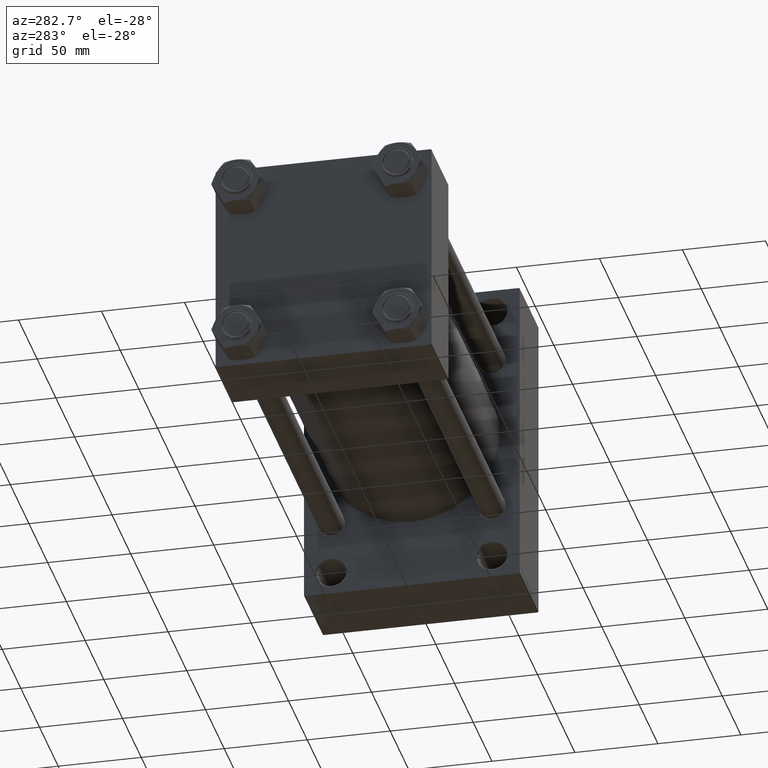
[diagram: clean part render]
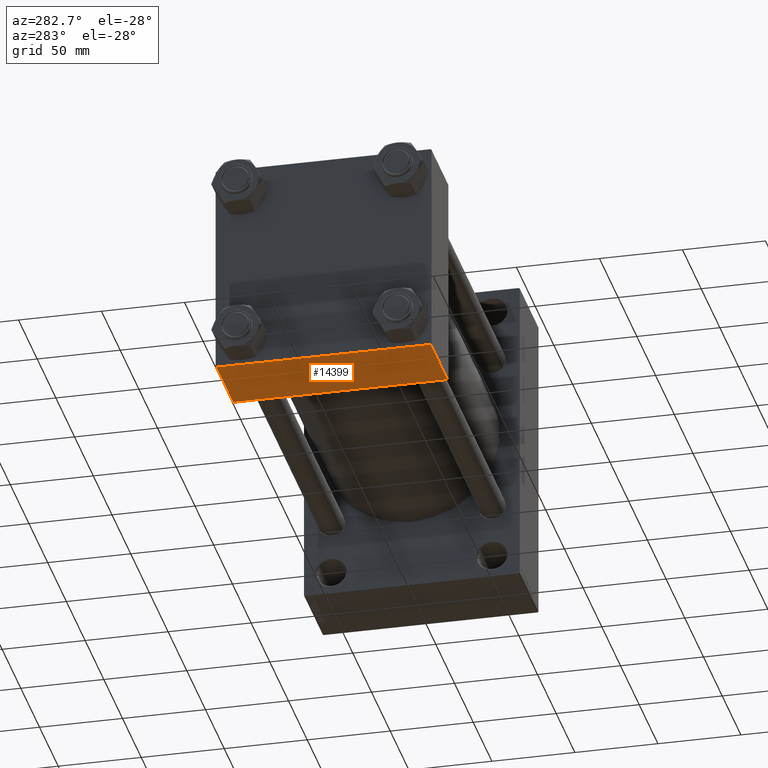
[diagram: same view with one face highlighted and labeled with its STEP entity id]
A machine part, auxiliary view. The second image highlights one B-rep face of the part: STEP entity #14399.
In plain terms, the highlighted planar face has unit normal (0, 0, -1).
Its self-contained STEP definition (entity closure, byte-faithful):
#242 = AXIS2_PLACEMENT_3D ( 'NONE', #14067, #5721, #27901 ) ;
#1845 = VECTOR ( 'NONE', #28975, 1000.000000000000000 ) ;
#2397 = VECTOR ( 'NONE', #33686, 1000.000000000000000 ) ;
#2867 = EDGE_CURVE ( 'NONE', #5959, #39251, #11494, .T. ) ;
#5721 = DIRECTION ( 'NONE',  ( 0.000000000000000000, 1.067522139062650548E-16, -1.000000000000000000 ) ) ;
#5959 = VERTEX_POINT ( 'NONE', #27084 ) ;
#6017 = ORIENTED_EDGE ( 'NONE', *, *, #18232, .T. ) ;
#8083 = VECTOR ( 'NONE', #34390, 1000.000000000000000 ) ;
#9201 = CARTESIAN_POINT ( 'NONE',  ( 45.00000000000000000, 64.49999999999997158, -64.99999999999998579 ) ) ;
#11494 = LINE ( 'NONE', #37306, #2397 ) ;
#12950 = FACE_OUTER_BOUND ( 'NONE', #13746, .T. ) ;
#13746 = EDGE_LOOP ( 'NONE', ( #29189, #22984, #6017, #44647 ) ) ;
#14067 = CARTESIAN_POINT ( 'NONE',  ( 45.00000000000000000, 65.00000000000000000, -64.99999999999998579 ) ) ;
#14399 = ADVANCED_FACE ( 'NONE', ( #12950 ), #42392, .T. ) ;
#16009 = EDGE_CURVE ( 'NONE', #40358, #22354, #47314, .T. ) ;
#16279 = LINE ( 'NONE', #19183, #8083 ) ;
#17853 = CARTESIAN_POINT ( 'NONE',  ( 45.00000000000000000, -64.49999999999994316, -65.00000000000000000 ) ) ;
#18232 = EDGE_CURVE ( 'NONE', #39251, #40358, #16279, .T. ) ;
#18467 = VECTOR ( 'NONE', #29255, 1000.000000000000000 ) ;
#19183 = CARTESIAN_POINT ( 'NONE',  ( 45.00000000000000000, 65.00000000000000000, -64.99999999999998579 ) ) ;
#22354 = VERTEX_POINT ( 'NONE', #28539 ) ;
#22984 = ORIENTED_EDGE ( 'NONE', *, *, #2867, .T. ) ;
#25342 = CARTESIAN_POINT ( 'NONE',  ( 0.000000000000000000, -64.49999999999994316, -65.00000000000000000 ) ) ;
#25869 = CARTESIAN_POINT ( 'NONE',  ( 0.000000000000000000, 65.00000000000000000, -64.99999999999998579 ) ) ;
#27084 = CARTESIAN_POINT ( 'NONE',  ( 0.000000000000000000, 64.49999999999997158, -64.99999999999998579 ) ) ;
#27901 = DIRECTION ( 'NONE',  ( 0.000000000000000000, 1.000000000000000000, 1.067522139062650548E-16 ) ) ;
#28539 = CARTESIAN_POINT ( 'NONE',  ( 0.000000000000000000, -64.49999999999994316, -65.00000000000000000 ) ) ;
#28975 = DIRECTION ( 'NONE',  ( -1.000000000000000000, 0.000000000000000000, 0.000000000000000000 ) ) ;
#29189 = ORIENTED_EDGE ( 'NONE', *, *, #34794, .F. ) ;
#29255 = DIRECTION ( 'NONE',  ( 0.000000000000000000, -1.000000000000000000, -1.067522139062650425E-16 ) ) ;
#33686 = DIRECTION ( 'NONE',  ( 1.000000000000000000, 0.000000000000000000, 0.000000000000000000 ) ) ;
#34390 = DIRECTION ( 'NONE',  ( 0.000000000000000000, -1.000000000000000000, -1.067522139062650425E-16 ) ) ;
#34794 = EDGE_CURVE ( 'NONE', #5959, #22354, #37441, .T. ) ;
#37306 = CARTESIAN_POINT ( 'NONE',  ( 45.00000000000000000, 64.49999999999997158, -64.99999999999998579 ) ) ;
#37441 = LINE ( 'NONE', #25869, #18467 ) ;
#39251 = VERTEX_POINT ( 'NONE', #9201 ) ;
#40358 = VERTEX_POINT ( 'NONE', #17853 ) ;
#42392 = PLANE ( 'NONE',  #242 ) ;
#44647 = ORIENTED_EDGE ( 'NONE', *, *, #16009, .T. ) ;
#47314 = LINE ( 'NONE', #25342, #1845 ) ;